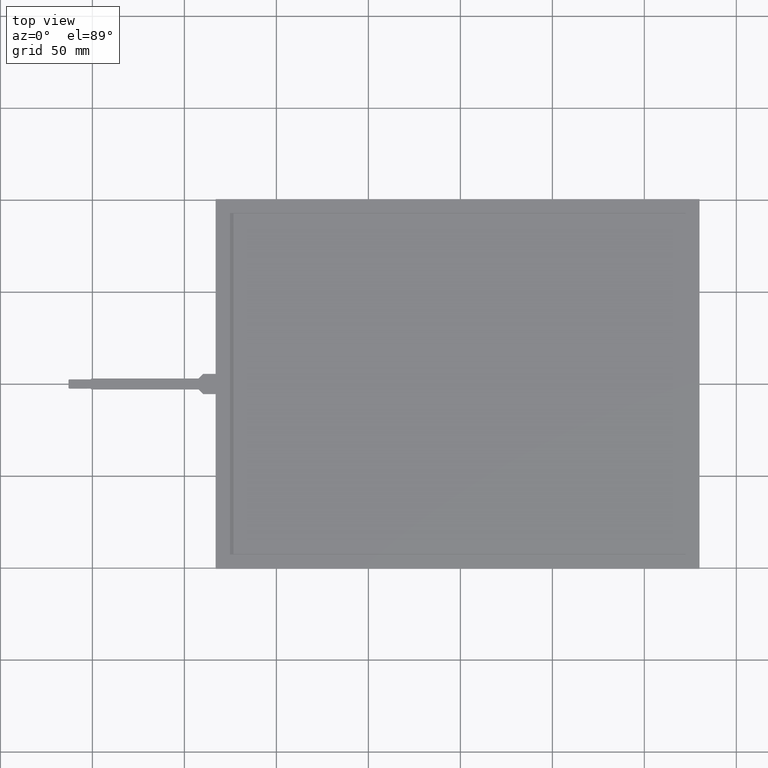
[diagram: clean part render]
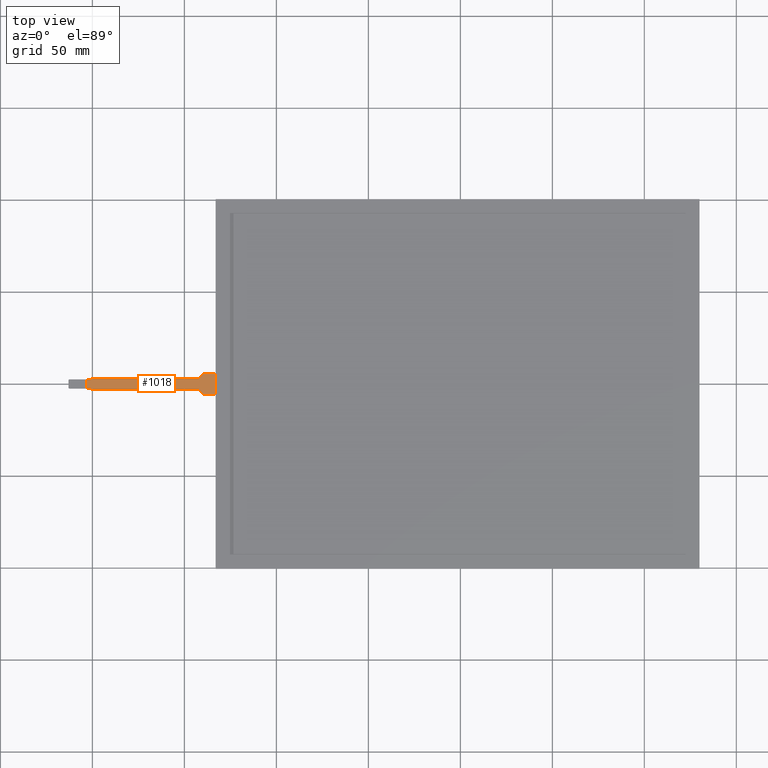
[diagram: same view with one face highlighted and labeled with its STEP entity id]
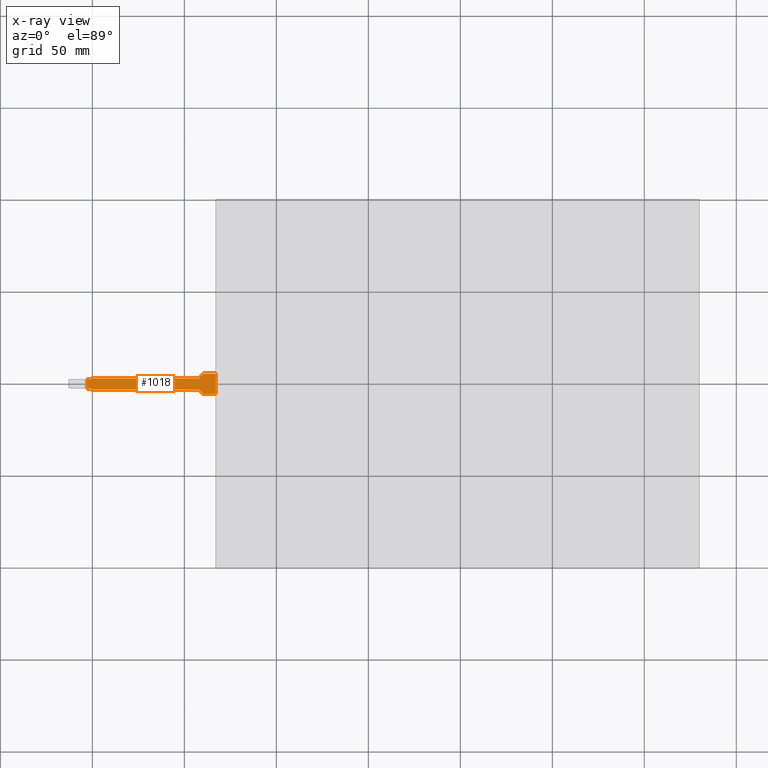
[diagram: x-ray of the same camera — body ghosted, the highlighted face saturated]
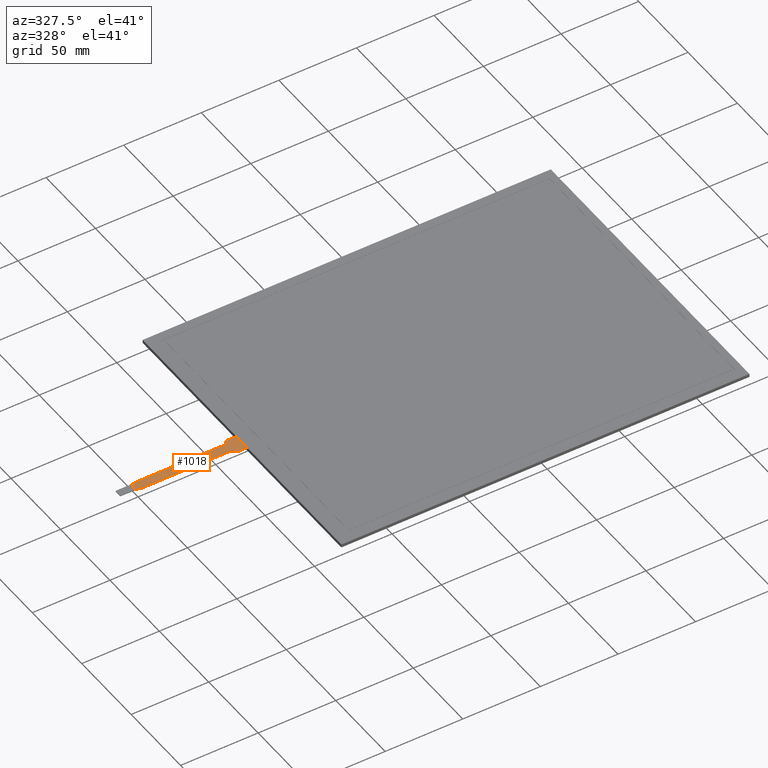
[diagram: same view with one face highlighted and labeled with its STEP entity id]
A machine part, top view. The second image highlights one B-rep face of the part: STEP entity #1018.
The next image is the same camera in x-ray: the body ghosted, the highlighted face saturated — about 0% of this face is hidden behind the body in this view.
A second angle (auxiliary view) of the same face is appended — the face is thin or edge-on in the first view.
In plain terms, the highlighted planar face has unit normal (0, 0, 1).
Its self-contained STEP definition (entity closure, byte-faithful):
#108=FACE_OUTER_BOUND('',#162,.T.);
#162=EDGE_LOOP('',(#898,#899,#900,#901,#902,#903,#904,#905,#906,#907,#908,
#909));
#224=LINE('',#1505,#350);
#257=LINE('',#1579,#383);
#261=LINE('',#1588,#387);
#265=LINE('',#1595,#391);
#267=LINE('',#1599,#393);
#270=LINE('',#1605,#396);
#273=LINE('',#1611,#399);
#276=LINE('',#1617,#402);
#279=LINE('',#1623,#405);
#282=LINE('',#1629,#408);
#285=LINE('',#1635,#411);
#288=LINE('',#1640,#414);
#350=VECTOR('',#1225,10.);
#383=VECTOR('',#1302,10.);
#387=VECTOR('',#1310,10.);
#391=VECTOR('',#1316,10.);
#393=VECTOR('',#1320,10.);
#396=VECTOR('',#1325,10.);
#399=VECTOR('',#1330,10.);
#402=VECTOR('',#1335,10.);
#405=VECTOR('',#1340,10.);
#408=VECTOR('',#1345,10.);
#411=VECTOR('',#1350,10.);
#414=VECTOR('',#1355,10.);
#468=VERTEX_POINT('',#1502);
#469=VERTEX_POINT('',#1504);
#488=VERTEX_POINT('',#1578);
#490=VERTEX_POINT('',#1586);
#491=VERTEX_POINT('',#1587);
#494=VERTEX_POINT('',#1598);
#496=VERTEX_POINT('',#1604);
#498=VERTEX_POINT('',#1610);
#500=VERTEX_POINT('',#1616);
#502=VERTEX_POINT('',#1622);
#504=VERTEX_POINT('',#1628);
#506=VERTEX_POINT('',#1634);
#576=EDGE_CURVE('',#469,#468,#224,.T.);
#613=EDGE_CURVE('',#488,#469,#257,.T.);
#617=EDGE_CURVE('',#490,#491,#261,.T.);
#621=EDGE_CURVE('',#491,#488,#265,.T.);
#623=EDGE_CURVE('',#468,#494,#267,.T.);
#626=EDGE_CURVE('',#494,#496,#270,.T.);
#629=EDGE_CURVE('',#496,#498,#273,.T.);
#632=EDGE_CURVE('',#498,#500,#276,.T.);
#635=EDGE_CURVE('',#500,#502,#279,.T.);
#638=EDGE_CURVE('',#502,#504,#282,.T.);
#641=EDGE_CURVE('',#504,#506,#285,.T.);
#644=EDGE_CURVE('',#506,#490,#288,.T.);
#898=ORIENTED_EDGE('',*,*,#613,.T.);
#899=ORIENTED_EDGE('',*,*,#576,.T.);
#900=ORIENTED_EDGE('',*,*,#623,.T.);
#901=ORIENTED_EDGE('',*,*,#626,.T.);
#902=ORIENTED_EDGE('',*,*,#629,.T.);
#903=ORIENTED_EDGE('',*,*,#632,.T.);
#904=ORIENTED_EDGE('',*,*,#635,.T.);
#905=ORIENTED_EDGE('',*,*,#638,.T.);
#906=ORIENTED_EDGE('',*,*,#641,.T.);
#907=ORIENTED_EDGE('',*,*,#644,.T.);
#908=ORIENTED_EDGE('',*,*,#617,.T.);
#909=ORIENTED_EDGE('',*,*,#621,.T.);
#966=PLANE('',#1103);
#1018=ADVANCED_FACE('',(#108),#966,.T.);
#1103=AXIS2_PLACEMENT_3D('',#1642,#1357,#1358);
#1225=DIRECTION('',(1.,-8.14163551391782E-15,0.));
#1302=DIRECTION('',(0.,-1.,0.));
#1310=DIRECTION('',(-0.707106781186535,-0.70710678118656,0.));
#1316=DIRECTION('',(-1.,-1.25825276124184E-14,0.));
#1320=DIRECTION('',(0.707106781186535,-0.70710678118656,0.));
#1325=DIRECTION('',(1.,-1.52503162723235E-16,0.));
#1330=DIRECTION('',(0.707106781186549,-0.707106781186546,0.));
#1335=DIRECTION('',(1.,-1.05109872153861E-14,0.));
#1340=DIRECTION('',(0.,1.,0.));
#1345=DIRECTION('',(-1.,-1.05109872153861E-14,0.));
#1350=DIRECTION('',(-0.707106781186549,-0.707106781186546,0.));
#1355=DIRECTION('',(-1.,-1.52503162723235E-16,0.));
#1357=DIRECTION('center_axis',(0.,0.,1.));
#1358=DIRECTION('ref_axis',(1.,0.,0.));
#1502=CARTESIAN_POINT('',(-201.,-2.49999999999998,0.2));
#1504=CARTESIAN_POINT('',(-203.,-2.49999999999997,0.2));
#1505=CARTESIAN_POINT('',(-213.,-2.49999999999988,0.2));
#1578=CARTESIAN_POINT('',(-203.,2.50000000000022,0.2));
#1579=CARTESIAN_POINT('',(-203.,-1.24999999999992,0.2));
#1586=CARTESIAN_POINT('',(-200.5,3.00000000000006,0.2));
#1587=CARTESIAN_POINT('',(-201.,2.50000000000025,0.2));
#1588=CARTESIAN_POINT('',(-200.5,3.00000000000006,0.2));
#1595=CARTESIAN_POINT('',(-201.,2.50000000000025,0.2));
#1598=CARTESIAN_POINT('',(-200.5,-2.99999999999979,0.2));
#1599=CARTESIAN_POINT('',(-201.,-2.49999999999998,0.2));
#1604=CARTESIAN_POINT('',(-142.26,-2.9999999999998,0.2));
#1605=CARTESIAN_POINT('',(-200.5,-2.99999999999979,0.2));
#1610=CARTESIAN_POINT('',(-139.76,-5.49999999999979,0.2));
#1611=CARTESIAN_POINT('',(-142.26,-2.9999999999998,0.2));
#1616=CARTESIAN_POINT('',(-133.,-5.49999999999986,0.2));
#1617=CARTESIAN_POINT('',(-139.76,-5.49999999999979,0.2));
#1622=CARTESIAN_POINT('',(-133.,5.50000000000013,0.2));
#1623=CARTESIAN_POINT('',(-133.,-5.49999999999986,0.2));
#1628=CARTESIAN_POINT('',(-139.76,5.50000000000006,0.2));
#1629=CARTESIAN_POINT('',(-133.,5.50000000000013,0.2));
#1634=CARTESIAN_POINT('',(-142.26,3.00000000000007,0.2));
#1635=CARTESIAN_POINT('',(-139.76,5.50000000000006,0.2));
#1640=CARTESIAN_POINT('',(-142.26,3.00000000000007,0.2));
#1642=CARTESIAN_POINT('Origin',(-173.,1.33226762955019E-13,0.2));